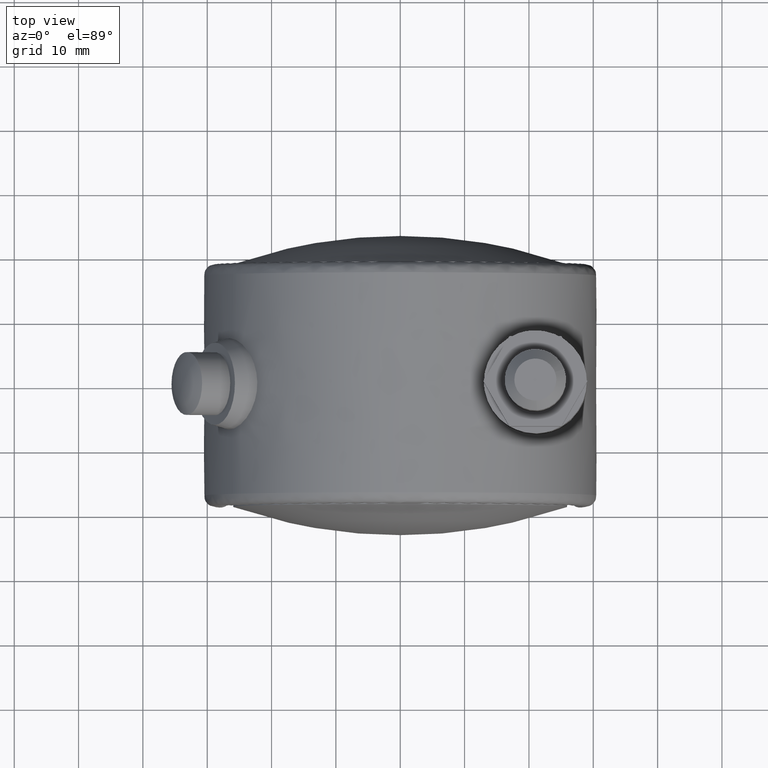
[diagram: clean part render]
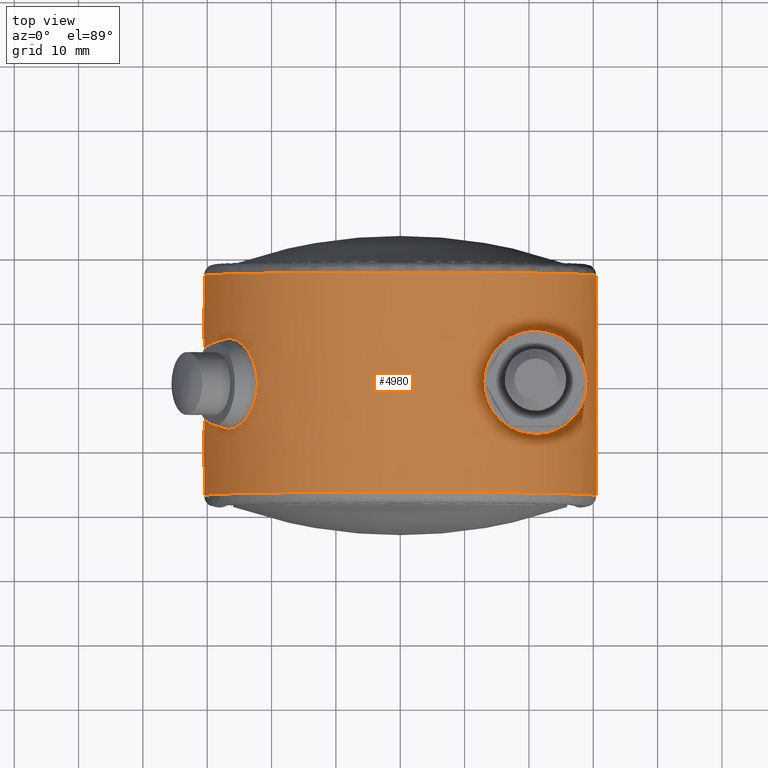
[diagram: same view with one face highlighted and labeled with its STEP entity id]
A machine part, top view. The second image highlights one B-rep face of the part: STEP entity #4980.
In plain terms, the highlighted face is a freeform B-spline surface patch.
Its self-contained STEP definition (entity closure, byte-faithful):
#1955=CARTESIAN_POINT('',(-27.778086036857172,6.638301039503485,12.594755659644420));
#1956=VERTEX_POINT('',#1955);
#1957=CARTESIAN_POINT('',(-29.260213249171208,-2.662628507578598,8.607549488085503));
#1958=VERTEX_POINT('',#1957);
#1959=CARTESIAN_POINT('',(-27.778086036857172,6.638301039503485,12.594755659644420));
#1960=CARTESIAN_POINT('',(-27.804671612689621,6.614725664539500,12.536119196431780));
#1961=CARTESIAN_POINT('',(-27.830949285658718,6.590272796179548,12.477668427208370));
#1962=CARTESIAN_POINT('',(-27.946463707063732,6.477640031470103,12.218567737081351));
#1963=CARTESIAN_POINT('',(-28.032397642587160,6.379868394860700,12.019976601217611));
#1964=CARTESIAN_POINT('',(-28.156130439130859,6.216993306614456,11.725762980640420));
#1965=CARTESIAN_POINT('',(-28.196545483983019,6.159920286204829,11.628216814908381));
#1966=CARTESIAN_POINT('',(-28.274855208216579,6.041552748386622,11.436484040289621));
#1967=CARTESIAN_POINT('',(-28.312861073263381,5.980121819535320,11.342036695741429));
#1968=CARTESIAN_POINT('',(-28.497431226189288,5.661877700440829,10.876882593172260));
#1969=CARTESIAN_POINT('',(-28.627739327794298,5.372131747847775,10.527192706201349));
#1970=CARTESIAN_POINT('',(-28.772186020022321,4.964967903483309,10.120210519056270));
#1971=CARTESIAN_POINT('',(-28.800146145333489,4.881264794397393,10.040335377569850));
#1972=CARTESIAN_POINT('',(-28.854260927942398,4.709202097783509,9.883743237542454));
#1973=CARTESIAN_POINT('',(-28.880444322481509,4.620708357542058,9.806935375787985));
#1974=CARTESIAN_POINT('',(-28.955537475158891,4.351107118937831,9.583911383043272));
#1975=CARTESIAN_POINT('',(-29.001297526197899,4.165009024349370,9.444229167688997));
#1976=CARTESIAN_POINT('',(-29.126991686127131,3.587828246727534,9.052268298213631));
#1977=CARTESIAN_POINT('',(-29.195469818281790,3.178063052160873,8.826784431668514));
#1978=CARTESIAN_POINT('',(-29.264204993728800,2.632382450709184,8.594101089420418));
#1979=CARTESIAN_POINT('',(-29.277114605879071,2.521349637012921,8.549988433793944));
#1980=CARTESIAN_POINT('',(-29.300969606359079,2.298515783990096,8.467876024255936));
#1981=CARTESIAN_POINT('',(-29.311956114592700,2.186419557629584,8.429738431840116));
#1982=CARTESIAN_POINT('',(-29.342223475125749,1.848115179982575,8.324014515830507));
#1983=CARTESIAN_POINT('',(-29.358823040893299,1.619896050816570,8.265098002886177));
#1984=CARTESIAN_POINT('',(-29.385286853851699,1.158093229482943,8.170511415273131));
#1985=CARTESIAN_POINT('',(-29.395151137920251,0.924509797976568,8.134840128619162));
#1986=CARTESIAN_POINT('',(-29.404949462026291,0.569996129638390,8.099322979824271));
#1987=CARTESIAN_POINT('',(-29.407379828554269,0.451133926584753,8.090487206787060));
#1988=CARTESIAN_POINT('',(-29.409752432082801,0.271777756721625,8.081856759744014));
#1989=CARTESIAN_POINT('',(-29.410330464482591,0.211776828489280,8.079752617889898));
#1990=CARTESIAN_POINT('',(-29.411054545149380,0.092170938519100,8.077116576350640));
#1991=CARTESIAN_POINT('',(-29.411202132817149,0.032475388800932,8.076579075393687));
#1992=CARTESIAN_POINT('',(-29.410623284796760,-0.503828914133659,8.078687254096831));
#1993=CARTESIAN_POINT('',(-29.396788363519711,-0.973811158633142,8.129527249369904));
#1994=CARTESIAN_POINT('',(-29.362352594725991,-1.553090493977871,8.252445596819982));
#1995=CARTESIAN_POINT('',(-29.354594147854058,-1.668532769994983,8.280022416417623));
#1996=CARTESIAN_POINT('',(-29.337264465461111,-1.898580771638011,8.341216020358816));
#1997=CARTESIAN_POINT('',(-29.327661101081649,-2.013505330492232,8.374944210979056));
#1998=CARTESIAN_POINT('',(-29.300421992210779,-2.309074947478676,8.469884395450313));
#1999=CARTESIAN_POINT('',(-29.281444912079252,-2.487615227862285,8.535377687118720));
#2000=CARTESIAN_POINT('',(-29.260213249171208,-2.662628507578598,8.607549488085503));
#2001=B_SPLINE_CURVE_WITH_KNOTS('',3,(#1959,#1960,#1961,#1962,#1963,#1964,#1965,#1966,#1967,#1968,#1969,#1970,#1971,#1972,#1973,#1974,#1975,#1976,#1977,#1978,#1979,#1980,#1981,#1982,#1983,#1984,#1985,#1986,#1987,#1988,#1989,#1990,#1991,#1992,#1993,#1994,#1995,#1996,#1997,#1998,#1999,#2000),.UNSPECIFIED.,.F.,.U.,(4,2,2,2,2,2,2,2,2,2,2,2,2,2,2,2,2,2,2,2,4),(0.682967139668406,0.687499999999992,0.703124999999993,0.710937499999993,0.718749999999993,0.749999999999994,0.757812499999994,0.765624999999994,0.781249999999994,0.812499999999995,0.820312499999995,0.828124999999996,0.843749999999996,0.859374999999996,0.867187499999996,0.871093749999997,0.874999999999997,0.906249999999997,0.914062499999998,0.921874999999998,0.934430154299400),.UNSPECIFIED.);
#2002=EDGE_CURVE('',#1956,#1958,#2001,.T.);
#2071=CARTESIAN_POINT('',(-28.727618650315950,-5.090132312476927,10.245678439323511));
#2072=VERTEX_POINT('',#2071);
#2073=CARTESIAN_POINT('',(-29.260213249171208,-2.662628507578598,8.607549488085503));
#2074=CARTESIAN_POINT('',(-29.255021925727430,-2.705420828872721,8.625196120645986));
#2075=CARTESIAN_POINT('',(-29.249695813164049,-2.748002289689817,8.643242024832455));
#2076=CARTESIAN_POINT('',(-29.216433748269690,-3.006043675863709,8.755544133261234));
#2077=CARTESIAN_POINT('',(-29.185115625550662,-3.216297650718590,8.859641503069502));
#2078=CARTESIAN_POINT('',(-29.114877427021639,-3.626136380812874,9.087801688076214));
#2079=CARTESIAN_POINT('',(-29.075919188251479,-3.825898692679417,9.211987173088623));
#2080=CARTESIAN_POINT('',(-28.989679272806239,-4.213861977009954,9.479888466292458));
#2081=CARTESIAN_POINT('',(-28.942885974396422,-4.399897267020100,9.622080355198989));
#2082=CARTESIAN_POINT('',(-28.841387846392120,-4.756566460076388,9.922168665544028));
#2083=CARTESIAN_POINT('',(-28.786656923363282,-4.927273876875549,10.080142289116649));
#2084=CARTESIAN_POINT('',(-28.727618650315950,-5.090132312476927,10.245678439323511));
#2085=B_SPLINE_CURVE_WITH_KNOTS('',3,(#2073,#2074,#2075,#2076,#2077,#2078,#2079,#2080,#2081,#2082,#2083,#2084),.UNSPECIFIED.,.F.,.U.,(4,2,2,2,2,4),(0.934430154299400,0.937499999999998,0.953124999999999,0.968749999999999,0.984375000000000,1.0),.UNSPECIFIED.);
#2086=EDGE_CURVE('',#1958,#2072,#2085,.T.);
#2088=CARTESIAN_POINT('',(-23.707433004148481,5.081656210524199,19.188736809748882));
#2089=VERTEX_POINT('',#2088);
#2090=CARTESIAN_POINT('',(-28.727618650315950,-5.090132312476927,10.245678439323511));
#2091=CARTESIAN_POINT('',(-28.609541979102818,-5.415849118113027,10.576750861925680));
#2092=CARTESIAN_POINT('',(-28.477539035479040,-5.701626143077689,10.928802432264931));
#2093=CARTESIAN_POINT('',(-28.182140700455921,-6.199300652593468,11.669442902744651));
#2094=CARTESIAN_POINT('',(-28.018774695685519,-6.411170463734176,12.058062067842631));
#2095=CARTESIAN_POINT('',(-27.791117883300991,-6.627818150180186,12.566470429835841));
#2096=CARTESIAN_POINT('',(-27.744501746026192,-6.668601724138171,12.669071596532220));
#2097=CARTESIAN_POINT('',(-27.649928212298541,-6.744383145763767,12.874168792898690));
#2098=CARTESIAN_POINT('',(-27.601850012223689,-6.779499059906207,12.976936006367691));
#2099=CARTESIAN_POINT('',(-27.455204910784499,-6.876657200375508,13.285845556435490));
#2100=CARTESIAN_POINT('',(-27.253253492763530,-6.984400079140296,13.699339411962450));
#2101=CARTESIAN_POINT('',(-27.037981584746650,-7.049025479704179,14.115719192395799));
#2102=CARTESIAN_POINT('',(-26.871304216598290,-7.081048919784334,14.429033364121979));
#2103=CARTESIAN_POINT('',(-26.814873951535809,-7.088977708109837,14.533643745726639));
#2104=CARTESIAN_POINT('',(-26.700225276179470,-7.099237349539032,14.743209818954600));
#2105=CARTESIAN_POINT('',(-26.642078177913799,-7.101543254251591,14.848025668265279));
#2106=CARTESIAN_POINT('',(-26.350035054204412,-7.098987240902887,15.367263477234820));
#2107=CARTESIAN_POINT('',(-26.109772871044900,-7.052527577641341,15.771671034852700));
#2108=CARTESIAN_POINT('',(-25.740406882723221,-6.917668807601497,16.362622502647490));
#2109=CARTESIAN_POINT('',(-25.615792803947969,-6.861779126428165,16.556986576212651));
#2110=CARTESIAN_POINT('',(-25.426796171684138,-6.761016128204403,16.844619253890819));
#2111=CARTESIAN_POINT('',(-25.363527082402491,-6.724624946629210,16.939722085763432));
#2112=CARTESIAN_POINT('',(-25.237703126640199,-6.646977330456848,17.126617625621300));
#2113=CARTESIAN_POINT('',(-25.174982574562801,-6.605635556849321,17.218663793262891));
#2114=CARTESIAN_POINT('',(-24.862454237267681,-6.386518173340390,17.672081274687979));
#2115=CARTESIAN_POINT('',(-24.615779918395791,-6.171881429989925,18.013170960783409));
#2116=CARTESIAN_POINT('',(-24.314336006468320,-5.853621780730840,18.413938304458121));
#2117=CARTESIAN_POINT('',(-24.254398129792680,-5.787448625721349,18.492802217187851));
#2118=CARTESIAN_POINT('',(-24.135318862472971,-5.649943448911890,18.647947498029779));
#2119=CARTESIAN_POINT('',(-24.076253487862079,-5.578679253361780,18.724125364490799));
#2120=CARTESIAN_POINT('',(-23.902283064092838,-5.359430160397152,18.946405332722460));
#2121=CARTESIAN_POINT('',(-23.789965145251401,-5.205289289321541,19.087093502298931));
#2122=CARTESIAN_POINT('',(-23.464811951867979,-4.719233700812914,19.487712025134929));
#2123=CARTESIAN_POINT('',(-23.263622055440472,-4.363945194669853,19.726410503749040));
#2124=CARTESIAN_POINT('',(-23.036327086124171,-3.878026459236896,19.989559044346180));
#2125=CARTESIAN_POINT('',(-22.992101452600039,-3.778717186934957,20.040394741142169));
#2126=CARTESIAN_POINT('',(-22.907234134916159,-3.578164626047099,20.137347761698500));
#2127=CARTESIAN_POINT('',(-22.866455245842278,-3.476637263093053,20.183624563421109));
#2128=CARTESIAN_POINT('',(-22.749151846771309,-3.168331012890927,20.316003405234909));
#2129=CARTESIAN_POINT('',(-22.677650328682549,-2.957837052266009,20.395671426242409));
#2130=CARTESIAN_POINT('',(-22.548660126491249,-2.526868598710318,20.538187939962469));
#2131=CARTESIAN_POINT('',(-22.491169769320759,-2.306394881602160,20.601037216140480));
#2132=CARTESIAN_POINT('',(-22.416162880603530,-1.967922930741293,20.682528972627019));
#2133=CARTESIAN_POINT('',(-22.393034896155719,-1.853802973853286,20.707558007761559));
#2134=CARTESIAN_POINT('',(-22.361273598941089,-1.680620668949122,20.741834192269881));
#2135=CARTESIAN_POINT('',(-22.351161384976329,-1.622470139347349,20.752729507973690));
#2136=CARTESIAN_POINT('',(-22.332037708200058,-1.506123508987018,20.773307129292402));
#2137=CARTESIAN_POINT('',(-22.323017886435618,-1.447892011377752,20.782998513102282));
#2138=CARTESIAN_POINT('',(-22.246693803371759,-0.923289600884365,20.864911192194231));
#2139=CARTESIAN_POINT('',(-22.213140462590129,-0.453320024077884,20.900392170646072));
#2140=CARTESIAN_POINT('',(-22.214380972054599,0.138675700099288,20.899073619649190));
#2141=CARTESIAN_POINT('',(-22.216801670490991,0.257303517921745,20.896501360841071));
#2142=CARTESIAN_POINT('',(-22.226051510154669,0.495023674178581,20.886662726666380));
#2143=CARTESIAN_POINT('',(-22.232897162800882,0.614327060046417,20.879378797278370));
#2144=CARTESIAN_POINT('',(-22.260069061195370,0.971553332364410,20.850420289252661));
#2145=CARTESIAN_POINT('',(-22.286785037031660,1.206196619125360,20.821907377232328));
#2146=CARTESIAN_POINT('',(-22.391310700114602,1.900057972772456,20.709651411420118));
#2147=CARTESIAN_POINT('',(-22.493333645858929,2.349300520623549,20.599493700442942));
#2148=CARTESIAN_POINT('',(-22.659291494016369,2.894207393833784,20.415899660322459));
#2149=CARTESIAN_POINT('',(-22.694325776840781,3.002010433290721,20.376961999248358));
#2150=CARTESIAN_POINT('',(-22.767399354472211,3.213673283436270,20.295283427884691));
#2151=CARTESIAN_POINT('',(-22.805513832153739,3.317783703780207,20.252459476387951));
#2152=CARTESIAN_POINT('',(-22.924373865278039,3.625075106731448,20.118086063294449));
#2153=CARTESIAN_POINT('',(-23.009625929529030,3.823228846674195,20.020650865884480));
#2154=CARTESIAN_POINT('',(-23.191268825266128,4.206454992621785,19.809957011178380));
#2155=CARTESIAN_POINT('',(-23.287660933908771,4.391527077567507,19.696698833789760));
#2156=CARTESIAN_POINT('',(-23.440173773765551,4.659271360838094,19.514469699074649));
#2157=CARTESIAN_POINT('',(-23.492469894774921,4.747079893395590,19.451499658511491));
#2158=CARTESIAN_POINT('',(-23.598686136329292,4.917824505706097,19.322499666476858));
#2159=CARTESIAN_POINT('',(-23.652658514584068,5.000873830973760,19.256409974197350));
#2160=CARTESIAN_POINT('',(-23.707433004148481,5.081656210524199,19.188736809748882));
#2161=B_SPLINE_CURVE_WITH_KNOTS('',3,(#2090,#2091,#2092,#2093,#2094,#2095,#2096,#2097,#2098,#2099,#2100,#2101,#2102,#2103,#2104,#2105,#2106,#2107,#2108,#2109,#2110,#2111,#2112,#2113,#2114,#2115,#2116,#2117,#2118,#2119,#2120,#2121,#2122,#2123,#2124,#2125,#2126,#2127,#2128,#2129,#2130,#2131,#2132,#2133,#2134,#2135,#2136,#2137,#2138,#2139,#2140,#2141,#2142,#2143,#2144,#2145,#2146,#2147,#2148,#2149,#2150,#2151,#2152,#2153,#2154,#2155,#2156,#2157,#2158,#2159,#2160),.UNSPECIFIED.,.F.,.U.,(4,2,2,2,2,1,2,2,2,2,2,2,2,2,2,2,2,2,2,2,2,2,2,2,2,2,2,2,2,2,2,2,2,2,2,4),(0.0,0.031249999999999,0.062499999999999,0.070312499999998,0.078124999999998,0.093749999999998,0.109374999999997,0.117187499999997,0.124999999999997,0.156249999999996,0.171874999999995,0.179687499999995,0.187499999999995,0.218749999999996,0.226562499999996,0.234374999999996,0.249999999999995,0.281249999999995,0.289062499999995,0.296874999999995,0.312499999999994,0.328124999999994,0.335937499999994,0.339843749999994,0.343749999999994,0.374999999999993,0.382812499999993,0.390624999999993,0.406249999999993,0.437499999999993,0.445312499999992,0.453124999999992,0.468749999999992,0.484374999999992,0.492187499999992,0.499999999999992),.UNSPECIFIED.);
#2162=EDGE_CURVE('',#2072,#2089,#2161,.T.);
#2164=CARTESIAN_POINT('',(-23.707433004148481,5.081656210524199,19.188736809748882));
#2165=CARTESIAN_POINT('',(-23.926530802302739,5.404785282777436,18.918044258664018));
#2166=CARTESIAN_POINT('',(-24.158322495424180,5.691984068412255,18.622239268012109));
#2167=CARTESIAN_POINT('',(-24.460514620934639,6.006969776766852,18.219312768739869));
#2168=CARTESIAN_POINT('',(-24.521583978940789,6.067745223617624,18.137054914775138));
#2169=CARTESIAN_POINT('',(-24.644930616613149,6.184790017276715,17.969091077598751));
#2170=CARTESIAN_POINT('',(-24.707216006021110,6.241046995825059,17.883367130989559));
#2171=CARTESIAN_POINT('',(-24.893801663242471,6.401292464581256,17.623678997620321));
#2172=CARTESIAN_POINT('',(-25.018485725356459,6.497420496327009,17.446314759153228));
#2173=CARTESIAN_POINT('',(-25.392668978203790,6.754601588001283,16.901376764778501));
#2174=CARTESIAN_POINT('',(-25.642259038728099,6.884749198533679,16.521054072352360));
#2175=CARTESIAN_POINT('',(-25.952682283691921,6.994228632835851,16.022547438056389));
#2176=CARTESIAN_POINT('',(-26.014722677474349,7.013430379337764,15.921623823105760));
#2177=CARTESIAN_POINT('',(-26.137268870045911,7.046036302971080,15.719639732490240));
#2178=CARTESIAN_POINT('',(-26.197946190199641,7.059506826245158,15.618306705910809));
#2179=CARTESIAN_POINT('',(-26.378191919172231,7.091560710307816,15.313285611351059));
#2180=CARTESIAN_POINT('',(-26.613756718740639,7.112050158077584,14.903865781012410));
#2181=CARTESIAN_POINT('',(-26.839796974850412,7.088570671088309,14.488997698631350));
#2182=CARTESIAN_POINT('',(-27.005750518112340,7.054209568382655,14.175800175177759));
#2183=CARTESIAN_POINT('',(-27.060472200739330,7.039959134117916,14.071059880940430));
#2184=CARTESIAN_POINT('',(-27.168721727728869,7.005759939242805,13.860895970972839));
#2185=CARTESIAN_POINT('',(-27.222306269489621,6.985768773334444,13.755350341656490));
#2186=CARTESIAN_POINT('',(-27.453993587274429,6.885729116008688,13.292425045496460));
#2187=CARTESIAN_POINT('',(-27.621388151058959,6.777257329949556,12.940364808344119));
#2188=CARTESIAN_POINT('',(-27.778086036857172,6.638301039503485,12.594755659644420));
#2189=B_SPLINE_CURVE_WITH_KNOTS('',3,(#2164,#2165,#2166,#2167,#2168,#2169,#2170,#2171,#2172,#2173,#2174,#2175,#2176,#2177,#2178,#2179,#2180,#2181,#2182,#2183,#2184,#2185,#2186,#2187,#2188),.UNSPECIFIED.,.F.,.U.,(4,2,2,2,2,2,2,2,1,2,2,2,4),(0.499999999999992,0.531249999999991,0.539062499999991,0.546874999999991,0.562499999999991,0.593749999999991,0.601562499999991,0.609374999999991,0.624999999999991,0.640624999999992,0.648437499999992,0.656249999999992,0.682967139668406),.UNSPECIFIED.);
#2190=EDGE_CURVE('',#2089,#1956,#2189,.T.);
#2661=CARTESIAN_POINT('',(20.372331091017440,7.975339012096953,22.698406674391141));
#2662=VERTEX_POINT('',#2661);
#2668=CARTESIAN_POINT('',(13.0,8.334804E-015,27.590759322642789));
#2669=VERTEX_POINT('',#2668);
#2670=CARTESIAN_POINT('',(13.0,8.334804E-015,27.590759322642789));
#2671=CARTESIAN_POINT('',(12.999999903939230,0.340244069778038,27.590759214886159));
#2672=CARTESIAN_POINT('',(13.021613130267690,0.676373878575311,27.580604720681482));
#2673=CARTESIAN_POINT('',(13.106046846197200,1.340763060584762,27.540582460555850));
#2674=CARTESIAN_POINT('',(13.168876286163460,1.669020783921562,27.510711212949960));
#2675=CARTESIAN_POINT('',(13.273164768506390,2.074375837903506,27.460400095731870));
#2676=CARTESIAN_POINT('',(13.295314677020180,2.155197481042243,27.449685327594121));
#2677=CARTESIAN_POINT('',(13.342217234844121,2.316336776828554,27.426918360103141));
#2678=CARTESIAN_POINT('',(13.367014306899870,2.396788747766879,27.414844434121900));
#2679=CARTESIAN_POINT('',(13.445023177025060,2.636391136988828,27.376716808652510));
#2680=CARTESIAN_POINT('',(13.501644294498149,2.793229025394524,27.348860319426421));
#2681=CARTESIAN_POINT('',(13.684767138640851,3.255333365444949,27.257946063388381));
#2682=CARTESIAN_POINT('',(13.824484610625770,3.552221234186172,27.187579581438939));
#2683=CARTESIAN_POINT('',(14.059101111619221,3.981270158257659,27.066571385249290));
#2684=CARTESIAN_POINT('',(14.141491652824021,4.121564563550847,27.023649702537149));
#2685=CARTESIAN_POINT('',(14.271273464828409,4.327916714682016,26.955203535004660));
#2686=CARTESIAN_POINT('',(14.315567345288720,4.396018743163721,26.931710300936441));
#2687=CARTESIAN_POINT('',(14.406215190116660,4.530852360058871,26.883330256415238));
#2688=CARTESIAN_POINT('',(14.452649035865180,4.597691163602041,26.858399973029279));
#2689=CARTESIAN_POINT('',(14.688474013098650,4.926398981943642,26.730965939618290));
#2690=CARTESIAN_POINT('',(14.889363701797519,5.172848901545065,26.619842755012780));
#2691=CARTESIAN_POINT('',(15.312757919317290,5.635026194950785,26.378563240018181));
#2692=CARTESIAN_POINT('',(15.535274891524439,5.850740023191091,26.248403565346450));
#2693=CARTESIAN_POINT('',(15.825726289884260,6.101869714363398,26.072988843207721));
#2694=CARTESIAN_POINT('',(15.884433551392981,6.151167629137829,26.037268726167589));
#2695=CARTESIAN_POINT('',(16.003057971239340,6.247915939276683,25.964528128495449));
#2696=CARTESIAN_POINT('',(16.063054072131312,6.295424382941055,25.927457923881509));
#2697=CARTESIAN_POINT('',(16.243826795406122,6.434434998165723,25.814879028780830));
#2698=CARTESIAN_POINT('',(16.365606511742090,6.522619909597924,25.737870749454778));
#2699=CARTESIAN_POINT('',(16.734312364135739,6.774402397090364,25.500938499854321));
#2700=CARTESIAN_POINT('',(16.984591311296199,6.925260343770498,25.335114360710669));
#2701=CARTESIAN_POINT('',(17.492242945045032,7.195719294626310,24.987312243208489));
#2702=CARTESIAN_POINT('',(17.749621079952082,7.315309488988477,24.805333115208889));
#2703=CARTESIAN_POINT('',(18.074865759497339,7.446376717284926,24.567363793782160));
#2704=CARTESIAN_POINT('',(18.140050211113280,7.471647689499037,24.519273659390720));
#2705=CARTESIAN_POINT('',(18.270076706398651,7.520129653183866,24.422540685545659));
#2706=CARTESIAN_POINT('',(18.464850199308511,7.589862657814537,24.276431870292779));
#2707=CARTESIAN_POINT('',(18.658771651709710,7.650924391559264,24.127300119008599));
#2708=CARTESIAN_POINT('',(19.045351756637189,7.762169899469661,23.825012147204671));
#2709=CARTESIAN_POINT('',(19.301384721247651,7.821856372593065,23.618123012221648));
#2710=CARTESIAN_POINT('',(19.809503454035070,7.915140207249634,23.193592608433011));
#2711=CARTESIAN_POINT('',(20.061590638462210,7.948729064922150,22.975951071833350));
#2712=CARTESIAN_POINT('',(20.331768616081028,7.972068859912444,22.734763399670531));
#2713=CARTESIAN_POINT('',(20.352057207199010,7.973743404161616,22.716602958450260));
#2714=CARTESIAN_POINT('',(20.372331091017440,7.975339012096953,22.698406674391141));
#2715=B_SPLINE_CURVE_WITH_KNOTS('',3,(#2670,#2671,#2672,#2673,#2674,#2675,#2676,#2677,#2678,#2679,#2680,#2681,#2682,#2683,#2684,#2685,#2686,#2687,#2688,#2689,#2690,#2691,#2692,#2693,#2694,#2695,#2696,#2697,#2698,#2699,#2700,#2701,#2702,#2703,#2704,#2705,#2706,#2707,#2708,#2709,#2710,#2711,#2712,#2713,#2714),.UNSPECIFIED.,.F.,.U.,(4,2,2,2,2,2,2,2,2,2,2,2,2,2,2,2,2,2,1,2,2,2,4),(0.0,0.015624999999999,0.031249999999997,0.035156249999997,0.039062499999997,0.046874999999996,0.062499999999995,0.070312499999994,0.074218749999994,0.078124999999994,0.093749999999992,0.109374999999991,0.113281249999991,0.117187499999991,0.124999999999990,0.140624999999990,0.156249999999989,0.160156249999989,0.164062499999989,0.171874999999988,0.187499999999988,0.203124999999988,0.204394584708128),.UNSPECIFIED.);
#2716=EDGE_CURVE('',#2669,#2662,#2715,.T.);
#2718=CARTESIAN_POINT('',(21.170517570596040,-7.998188154073477,21.955847994155739));
#2719=VERTEX_POINT('',#2718);
#2720=CARTESIAN_POINT('',(21.170517570596040,-7.998188154073477,21.955847994155739));
#2721=CARTESIAN_POINT('',(21.121311347838532,-7.999230619422698,22.003293098054531));
#2722=CARTESIAN_POINT('',(21.071890485968009,-7.999825397621969,22.050626297141051));
#2723=CARTESIAN_POINT('',(20.900213738951550,-8.000303025761026,22.213946823188252));
#2724=CARTESIAN_POINT('',(20.776835337812990,-7.997839846449859,22.329383565034640));
#2725=CARTESIAN_POINT('',(20.529426370336310,-7.987102552279535,22.557058986329800));
#2726=CARTESIAN_POINT('',(20.405153823803520,-7.978833222235091,22.669530598407750));
#2727=CARTESIAN_POINT('',(20.030714556765879,-7.945012699149613,23.002873053015641));
#2728=CARTESIAN_POINT('',(19.778923800534930,-7.910469559737523,23.219673476918231));
#2729=CARTESIAN_POINT('',(19.271501190388449,-7.815296064825385,23.642510553300330));
#2730=CARTESIAN_POINT('',(19.015867897879101,-7.754674193053666,23.848547479052101));
#2731=CARTESIAN_POINT('',(18.629972004576590,-7.642045307539031,24.149549742693580));
#2732=CARTESIAN_POINT('',(18.500933242164749,-7.600879665172768,24.248541104703580));
#2733=CARTESIAN_POINT('',(18.306829328396290,-7.533356599391053,24.395011101920979));
#2734=CARTESIAN_POINT('',(18.242037141341939,-7.509885903410658,24.443498219872190));
#2735=CARTESIAN_POINT('',(18.112282807351480,-7.460954113257366,24.539799018599531));
#2736=CARTESIAN_POINT('',(18.047242935202330,-7.435459679235541,24.587668758606942));
#2737=CARTESIAN_POINT('',(17.723262859794680,-7.303509883763169,24.824160027304220));
#2738=CARTESIAN_POINT('',(17.467121601672599,-7.183368445523927,25.004862111616120));
#2739=CARTESIAN_POINT('',(16.962372837284011,-6.912277837669375,25.349977796479859));
#2740=CARTESIAN_POINT('',(16.713760133087600,-6.761338485288486,25.514392408106520));
#2741=CARTESIAN_POINT('',(16.347851763685391,-6.509944362990025,25.749150288689549));
#2742=CARTESIAN_POINT('',(16.227054124126919,-6.421974459486569,25.825423742942551));
#2743=CARTESIAN_POINT('',(16.047824508425499,-6.283440413973612,25.936890259781791));
#2744=CARTESIAN_POINT('',(15.988409417463290,-6.236165194495692,25.973555011973559));
#2745=CARTESIAN_POINT('',(15.870274459818290,-6.139357771952021,26.045905326840199));
#2746=CARTESIAN_POINT('',(15.811453176778929,-6.089734861262074,26.081651584435789));
#2747=CARTESIAN_POINT('',(15.520984882860629,-5.837389468089119,26.256859506504529));
#2748=CARTESIAN_POINT('',(15.299552709478570,-5.621545336077015,26.386207786702212));
#2749=CARTESIAN_POINT('',(14.879973919437640,-5.161604138628589,26.625075602843388));
#2750=CARTESIAN_POINT('',(14.681818532873599,-4.917514624387941,26.734595900525090));
#2751=CARTESIAN_POINT('',(14.403685715318501,-4.529234894958843,26.884845924548060));
#2752=CARTESIAN_POINT('',(14.314165091496051,-4.396109235876355,26.932585486722520));
#2753=CARTESIAN_POINT('',(14.184952706907531,-4.190663697317691,27.000731227406821));
#2754=CARTESIAN_POINT('',(14.142727283852210,-4.121221658312192,27.022868814367339));
#2755=CARTESIAN_POINT('',(14.060022616269389,-3.980373345007281,27.065992279268780));
#2756=CARTESIAN_POINT('',(14.019465248547229,-3.908822163049307,27.087018360683540));
#2757=CARTESIAN_POINT('',(13.822207428428330,-3.547895101893951,27.188749647412060));
#2758=CARTESIAN_POINT('',(13.682785104399491,-3.250604417952824,27.258936971641759));
#2759=CARTESIAN_POINT('',(13.440754295979520,-2.639293469542896,27.379086492287740));
#2760=CARTESIAN_POINT('',(13.338138827264380,-2.325275433210366,27.429047192899791));
#2761=CARTESIAN_POINT('',(13.213019366883310,-1.841381843451622,27.489420934451491));
#2762=CARTESIAN_POINT('',(13.176126146456079,-1.677933201052164,27.507107237311882));
#2763=CARTESIAN_POINT('',(13.128288133968750,-1.429428925937841,27.529953917459931));
#2764=CARTESIAN_POINT('',(13.113592384789310,-1.345999397875844,27.536955398433239));
#2765=CARTESIAN_POINT('',(13.086920515415990,-1.179115251265940,27.549641182861169));
#2766=CARTESIAN_POINT('',(13.074916691885489,-1.095526940131483,27.555338736840952));
#2767=CARTESIAN_POINT('',(13.042888999531780,-0.844325480124772,27.570520574461639));
#2768=CARTESIAN_POINT('',(13.026844946449490,-0.676276297022707,27.578097309250420));
#2769=CARTESIAN_POINT('',(13.010761648644340,-0.423330058123802,27.585686803069770));
#2770=CARTESIAN_POINT('',(13.006731999991370,-0.338869111653421,27.587586546742209));
#2771=CARTESIAN_POINT('',(13.001351180768500,-0.169654631714133,27.590122803183480));
#2772=CARTESIAN_POINT('',(12.999999999501830,-0.085060995974636,27.590759322643461));
#2773=CARTESIAN_POINT('',(13.0,8.334804E-015,27.590759322642789));
#2774=B_SPLINE_CURVE_WITH_KNOTS('',3,(#2720,#2721,#2722,#2723,#2724,#2725,#2726,#2727,#2728,#2729,#2730,#2731,#2732,#2733,#2734,#2735,#2736,#2737,#2738,#2739,#2740,#2741,#2742,#2743,#2744,#2745,#2746,#2747,#2748,#2749,#2750,#2751,#2752,#2753,#2754,#2755,#2756,#2757,#2758,#2759,#2760,#2761,#2762,#2763,#2764,#2765,#2766,#2767,#2768,#2769,#2770,#2771,#2772,#2773),.UNSPECIFIED.,.F.,.U.,(4,2,2,2,2,2,2,2,2,2,2,2,2,2,2,2,2,2,2,2,2,2,2,2,2,2,4),(0.778072405911495,0.781249999999990,0.789062499999991,0.796874999999991,0.812499999999991,0.828124999999992,0.835937499999992,0.839843749999992,0.843749999999992,0.859374999999992,0.874999999999993,0.882812499999993,0.886718749999993,0.890624999999993,0.906249999999994,0.921874999999995,0.929687499999995,0.933593749999996,0.937499999999996,0.953124999999997,0.968749999999998,0.976562499999999,0.980468749999999,0.984374999999999,0.992187500000000,0.996093750000000,1.0),.UNSPECIFIED.);
#2775=EDGE_CURVE('',#2719,#2669,#2774,.T.);
#2823=CARTESIAN_POINT('',(28.999895866510808,-0.040818194267602,9.447541464927753));
#2824=VERTEX_POINT('',#2823);
#2825=CARTESIAN_POINT('',(28.999895866510808,-0.040818194267602,9.447541464927753));
#2826=CARTESIAN_POINT('',(28.999466214408979,-0.125024985761245,9.448860311507323));
#2827=CARTESIAN_POINT('',(28.997705745496152,-0.209561128017436,9.454266917218384));
#2828=CARTESIAN_POINT('',(28.991454197050171,-0.379305719176543,9.473419918093274));
#2829=CARTESIAN_POINT('',(28.987015024879980,-0.463088870802789,9.487006303984074));
#2830=CARTESIAN_POINT('',(28.970064659284969,-0.710992778104979,9.538693229067414));
#2831=CARTESIAN_POINT('',(28.953926323659921,-0.871891599050404,9.587716465261485));
#2832=CARTESIAN_POINT('',(28.923331552824099,-1.107746051056898,9.679459219860833));
#2833=CARTESIAN_POINT('',(28.912041694407382,-1.185534532033239,9.713149823777863));
#2834=CARTESIAN_POINT('',(28.887826855472390,-1.337192275391238,9.784931984983007));
#2835=CARTESIAN_POINT('',(28.874865232686421,-1.411374722773494,9.823133995842207));
#2836=CARTESIAN_POINT('',(28.833657710783850,-1.629642223001002,9.943711528936593));
#2837=CARTESIAN_POINT('',(28.803101660287311,-1.769477290136857,10.032015601056790));
#2838=CARTESIAN_POINT('',(28.736689946539499,-2.040361091664412,10.220697288736231));
#2839=CARTESIAN_POINT('',(28.700828200058151,-2.171396421399778,10.321094023708220));
#2840=CARTESIAN_POINT('',(28.624322384137312,-2.426401598566568,10.531414394042590));
#2841=CARTESIAN_POINT('',(28.584073826983481,-2.549049295761523,10.640248567641891));
#2842=CARTESIAN_POINT('',(28.458199956339769,-2.904922855426706,10.974403051372070));
#2843=CARTESIAN_POINT('',(28.367367485436869,-3.126647320223306,11.207552820653010));
#2844=CARTESIAN_POINT('',(28.173392156563370,-3.549150549939596,11.686605684430020));
#2845=CARTESIAN_POINT('',(28.070221762861291,-3.749794647455663,11.932612459985309));
#2846=CARTESIAN_POINT('',(27.852034721621319,-4.135046907100209,12.433372493193190));
#2847=CARTESIAN_POINT('',(27.737008617205991,-4.319604242075376,12.688165276117680));
#2848=CARTESIAN_POINT('',(27.555592540315391,-4.586475677422900,13.075152555868950));
#2849=CARTESIAN_POINT('',(27.493559783683310,-4.673858919790865,13.205115626275409));
#2850=CARTESIAN_POINT('',(27.367112095094889,-4.844704085381898,13.465217552543610));
#2851=CARTESIAN_POINT('',(27.302654777020820,-4.928237472668623,13.595453176760500));
#2852=CARTESIAN_POINT('',(27.105583144384742,-5.173571513873103,13.986514550004321));
#2853=CARTESIAN_POINT('',(26.969273060727211,-5.330130634835134,14.247684951109150));
#2854=CARTESIAN_POINT('',(26.545398640022800,-5.780889120983929,15.031456428055010));
#2855=CARTESIAN_POINT('',(26.242942875101448,-6.056380979743837,15.554244844894059));
#2856=CARTESIAN_POINT('',(25.596047715978852,-6.560833574937910,16.597256531219760));
#2857=CARTESIAN_POINT('',(25.251620093372001,-6.789724648309830,17.117521711041380));
#2858=CARTESIAN_POINT('',(24.700415176599272,-7.095846833481302,17.895263442960399));
#2859=CARTESIAN_POINT('',(24.510904108248141,-7.191641958206220,18.154080016155419));
#2860=CARTESIAN_POINT('',(24.217414787207261,-7.325280557553059,18.541657912420330));
#2861=CARTESIAN_POINT('',(24.118028007192891,-7.368146676741992,18.670759027235739));
#2862=CARTESIAN_POINT('',(23.917272475388572,-7.449912960469409,18.927244777650500));
#2863=CARTESIAN_POINT('',(23.815763562203479,-7.488879464101702,19.054816771505848));
#2864=CARTESIAN_POINT('',(23.302512003680711,-7.673908433252922,19.689316406671889));
#2865=CARTESIAN_POINT('',(22.873693819556511,-7.790796551579367,20.186160793838830));
#2866=CARTESIAN_POINT('',(22.023188638046641,-7.944828472284153,21.108807958559350));
#2867=CARTESIAN_POINT('',(21.605229193750841,-7.988978886596056,21.536694956322378));
#2868=CARTESIAN_POINT('',(21.170517570596040,-7.998188154073477,21.955847994155739));
#2869=B_SPLINE_CURVE_WITH_KNOTS('',3,(#2825,#2826,#2827,#2828,#2829,#2830,#2831,#2832,#2833,#2834,#2835,#2836,#2837,#2838,#2839,#2840,#2841,#2842,#2843,#2844,#2845,#2846,#2847,#2848,#2849,#2850,#2851,#2852,#2853,#2854,#2855,#2856,#2857,#2858,#2859,#2860,#2861,#2862,#2863,#2864,#2865,#2866,#2867,#2868),.UNSPECIFIED.,.F.,.U.,(4,2,2,2,2,2,2,2,2,2,2,2,2,2,2,2,2,2,2,2,2,4),(0.499999999999988,0.503906249999988,0.507812499999988,0.515624999999988,0.519531249999988,0.523437499999988,0.531249999999988,0.539062499999988,0.546874999999988,0.562499999999988,0.578124999999989,0.593749999999989,0.601562499999989,0.609374999999989,0.624999999999989,0.656249999999989,0.687499999999989,0.703124999999989,0.710937499999989,0.718749999999989,0.749999999999990,0.778072405911495),.UNSPECIFIED.);
#2870=EDGE_CURVE('',#2824,#2719,#2869,.T.);
#2872=CARTESIAN_POINT('',(20.372331091017440,7.975339012096953,22.698406674391141));
#2873=CARTESIAN_POINT('',(20.476814394860860,7.983562123295528,22.604630629446088));
#2874=CARTESIAN_POINT('',(20.580907080667490,7.989688728667493,22.509902617954239));
#2875=CARTESIAN_POINT('',(20.808398575754399,7.998664615754803,22.299965976334441));
#2876=CARTESIAN_POINT('',(20.931859134815561,8.000643388904575,22.184124391489799));
#2877=CARTESIAN_POINT('',(21.543070492582519,7.996509522895173,21.600981826078868));
#2878=CARTESIAN_POINT('',(22.010563826394218,7.948979957824675,21.123989728706562));
#2879=CARTESIAN_POINT('',(22.906418467171250,7.782871204991352,20.149041881917348));
#2880=CARTESIAN_POINT('',(23.334753686592681,7.664155590043879,19.651089642469032));
#2881=CARTESIAN_POINT('',(23.949518855898880,7.439617401009746,18.888536715977541));
#2882=CARTESIAN_POINT('',(24.149807470361129,7.356977698999828,18.631748963825750));
#2883=CARTESIAN_POINT('',(24.443417447757142,7.221804288386003,18.242681655423549));
#2884=CARTESIAN_POINT('',(24.539962741718231,7.174955753647552,18.112588053615060));
#2885=CARTESIAN_POINT('',(24.729808213643199,7.078125214873129,17.852512768600850));
#2886=CARTESIAN_POINT('',(24.823213715242360,7.028095187000134,17.722391950707841));
#2887=CARTESIAN_POINT('',(25.282885525258799,6.770131609125193,17.071376893470109));
#2888=CARTESIAN_POINT('',(25.627173824347420,6.538983262560786,16.549187609240761));
#2889=CARTESIAN_POINT('',(26.273195011555309,6.030128941236733,15.503125762867310));
#2890=CARTESIAN_POINT('',(26.574915101893009,5.752493431060155,14.979209381625500));
#2891=CARTESIAN_POINT('',(26.997332067371850,5.298556812022928,14.194440738368931));
#2892=CARTESIAN_POINT('',(27.133096739533588,5.140943684048899,13.933054765956889));
#2893=CARTESIAN_POINT('',(27.394656612243800,4.811709268906970,13.411478669909600));
#2894=CARTESIAN_POINT('',(27.520528491662599,4.639995789144180,13.151118811368280));
#2895=CARTESIAN_POINT('',(27.761946750676991,4.280529278262414,12.633516691286459));
#2896=CARTESIAN_POINT('',(27.876833384317958,4.093798948823909,12.377691081905130));
#2897=CARTESIAN_POINT('',(28.094863923116971,3.703098085259662,11.874498455323129));
#2898=CARTESIAN_POINT('',(28.198018857548529,3.499190842336803,11.627086494192451));
#2899=CARTESIAN_POINT('',(28.343495568804279,3.176006322280874,11.265569639154140));
#2900=CARTESIAN_POINT('',(28.390390401362041,3.065446992616508,11.146798759158710));
#2901=CARTESIAN_POINT('',(28.480324761223990,2.838939642872145,10.914966737159270));
#2902=CARTESIAN_POINT('',(28.523438293811591,2.722838455020216,10.801721348187980));
#2903=CARTESIAN_POINT('',(28.605720469903041,2.483745245447467,10.581893969502930));
#2904=CARTESIAN_POINT('',(28.644891569266768,2.360761302963278,10.475303362454101));
#2905=CARTESIAN_POINT('',(28.718904750579931,2.106198421008185,10.270652880446541));
#2906=CARTESIAN_POINT('',(28.753751664361118,1.974634738169228,10.172576804782249));
#2907=CARTESIAN_POINT('',(28.802297897142509,1.768927640474581,10.033942519912490));
#2908=CARTESIAN_POINT('',(28.817856910993399,1.698957086924375,9.989152862646066));
#2909=CARTESIAN_POINT('',(28.847608145763150,1.555759908177278,9.902906615054691));
#2910=CARTESIAN_POINT('',(28.861778567918879,1.482596819628976,9.861511324645809));
#2911=CARTESIAN_POINT('',(28.901518192590721,1.260415794472493,9.744690556923846));
#2912=CARTESIAN_POINT('',(28.924514006425149,1.107890082066425,9.676056274873904));
#2913=CARTESIAN_POINT('',(28.952866692780152,0.870772871914611,9.590745333515756));
#2914=CARTESIAN_POINT('',(28.961290072524069,0.790340005134364,9.565260546985297));
#2915=CARTESIAN_POINT('',(28.975870241399470,0.626315699270510,9.521001960369782));
#2916=CARTESIAN_POINT('',(28.981951491652701,0.543459319221662,9.502458468690671));
#2917=CARTESIAN_POINT('',(28.996296208381679,0.294690538853195,9.458633497126327));
#2918=CARTESIAN_POINT('',(29.000755149230400,0.127595414520862,9.444903748324668));
#2919=CARTESIAN_POINT('',(28.999895866510808,-0.040818194267602,9.447541464927753));
#2920=B_SPLINE_CURVE_WITH_KNOTS('',3,(#2872,#2873,#2874,#2875,#2876,#2877,#2878,#2879,#2880,#2881,#2882,#2883,#2884,#2885,#2886,#2887,#2888,#2889,#2890,#2891,#2892,#2893,#2894,#2895,#2896,#2897,#2898,#2899,#2900,#2901,#2902,#2903,#2904,#2905,#2906,#2907,#2908,#2909,#2910,#2911,#2912,#2913,#2914,#2915,#2916,#2917,#2918,#2919),.UNSPECIFIED.,.F.,.U.,(4,2,2,2,2,2,2,2,2,2,2,2,2,2,2,2,2,2,2,2,2,2,2,4),(0.204394584708128,0.210937499999988,0.218749999999987,0.249999999999988,0.281249999999988,0.296874999999988,0.304687499999988,0.312499999999987,0.343749999999987,0.374999999999988,0.390624999999988,0.406249999999988,0.421874999999988,0.437499999999988,0.445312499999988,0.453124999999988,0.460937499999988,0.468749999999988,0.472656249999988,0.476562499999988,0.484374999999988,0.488281249999988,0.492187499999988,0.499999999999988),.UNSPECIFIED.);
#2921=EDGE_CURVE('',#2662,#2824,#2920,.T.);
#4550=CARTESIAN_POINT('',(29.647461056049000,-17.100000000000001,-7.160869565217389));
#4551=VERTEX_POINT('',#4550);
#4619=CARTESIAN_POINT('',(29.647461056049000,17.100000000000001,-7.160869565217389));
#4620=VERTEX_POINT('',#4619);
#4686=CARTESIAN_POINT('',(-29.647461056049000,-17.100000000000001,-7.160869565217389));
#4687=VERTEX_POINT('',#4686);
#4757=CARTESIAN_POINT('',(-29.647461056049000,17.100000000000001,-7.160869565217389));
#4758=VERTEX_POINT('',#4757);
#4825=CARTESIAN_POINT('',(-29.647461056049011,-17.100000000000001,-7.160869565217417));
#4826=CARTESIAN_POINT('',(-34.573825898210522,-17.099999999999998,13.235286023945019));
#4827=CARTESIAN_POINT('',(-17.286912949105261,-17.100000000000001,25.127925515053111));
#4828=CARTESIAN_POINT('',(1.040834E-014,-17.099999999999998,37.020565006161192));
#4829=CARTESIAN_POINT('',(17.286912949105272,-17.100000000000001,25.127925515053100));
#4830=CARTESIAN_POINT('',(34.573825898210515,-17.099999999999998,13.235286023945019));
#4831=CARTESIAN_POINT('',(29.647461056049021,-17.100000000000001,-7.160869565217403));
#4839=(BOUNDED_CURVE()B_SPLINE_CURVE(2,(#4825,#4826,#4827,#4828,#4829,#4830,#4831),.UNSPECIFIED.,.F.,.U.)B_SPLINE_CURVE_WITH_KNOTS((3,2,2,3),(0.0,0.333333333333333,0.666666666666667,1.0),.UNSPECIFIED.)CURVE()GEOMETRIC_REPRESENTATION_ITEM()RATIONAL_B_SPLINE_CURVE((1.0,0.823866410329610,1.0,0.823866410329610,1.0,0.823866410329610,1.0))REPRESENTATION_ITEM(''));
#4840=EDGE_CURVE('',#4687,#4551,#4839,.T.);
#4915=CARTESIAN_POINT('',(29.647461056049011,17.100000000000001,-7.160869565217417));
#4916=CARTESIAN_POINT('',(34.573825898210522,17.099999999999998,13.235286023945019));
#4917=CARTESIAN_POINT('',(17.286912949105261,17.100000000000001,25.127925515053111));
#4918=CARTESIAN_POINT('',(-1.040834E-014,17.099999999999998,37.020565006161192));
#4919=CARTESIAN_POINT('',(-17.286912949105272,17.100000000000001,25.127925515053100));
#4920=CARTESIAN_POINT('',(-34.573825898210515,17.099999999999998,13.235286023945019));
#4921=CARTESIAN_POINT('',(-29.647461056049021,17.100000000000001,-7.160869565217403));
#4929=(BOUNDED_CURVE()B_SPLINE_CURVE(2,(#4915,#4916,#4917,#4918,#4919,#4920,#4921),.UNSPECIFIED.,.F.,.U.)B_SPLINE_CURVE_WITH_KNOTS((3,2,2,3),(0.0,0.333333333333333,0.666666666666667,1.0),.UNSPECIFIED.)CURVE()GEOMETRIC_REPRESENTATION_ITEM()RATIONAL_B_SPLINE_CURVE((1.0,0.823866410329610,1.0,0.823866410329610,1.0,0.823866410329610,1.0))REPRESENTATION_ITEM(''));
#4930=EDGE_CURVE('',#4620,#4758,#4929,.T.);
#4936=CARTESIAN_POINT('',(-29.583842589116809,17.955000000000009,-7.419316522588724));
#4937=CARTESIAN_POINT('',(-29.583842589116809,-17.976375000000012,-7.419316522588724));
#4938=CARTESIAN_POINT('',(-39.340739115570173,17.955000000000013,31.485411442324118));
#4939=CARTESIAN_POINT('',(-39.340739115570173,-17.976375000000001,31.485411442324118));
#4940=CARTESIAN_POINT('',(0.756458708509946,17.955000000000009,30.490617740910380));
#4941=CARTESIAN_POINT('',(0.756458708509946,-17.976375000000012,30.490617740910380));
#4942=CARTESIAN_POINT('',(40.853656532590072,17.955000000000013,29.495824039496654));
#4943=CARTESIAN_POINT('',(40.853656532590072,-17.976375000000001,29.495824039496654));
#4944=CARTESIAN_POINT('',(29.179532995451900,17.955000000000009,-8.877209818818820));
#4945=CARTESIAN_POINT('',(29.179532995451900,-17.976375000000012,-8.877209818818820));
#4953=(BOUNDED_SURFACE()B_SPLINE_SURFACE(1,2,((#4936,#4938,#4940,#4942,#4944),(#4937,#4939,#4941,#4943,#4945)),.UNSPECIFIED.,.F.,.F.,.U.)B_SPLINE_SURFACE_WITH_KNOTS((2,2),(3,2,3),(0.0,35.931375000000017),(0.0,60.494990346048020,120.989980692096000),.UNSPECIFIED.)GEOMETRIC_REPRESENTATION_ITEM()RATIONAL_B_SPLINE_SURFACE(((1.0,0.605293988042895,1.0,0.605293988042895,1.0),(1.0,0.605293988042895,1.0,0.605293988042895,1.0)))REPRESENTATION_ITEM('')SURFACE());
#4954=ORIENTED_EDGE('',*,*,#4930,.T.);
#4955=CARTESIAN_POINT('',(-29.647461056049000,17.100000000000001,-7.160869565217389));
#4956=CARTESIAN_POINT('',(-29.647461056049000,-17.100000000000001,-7.160869565217389));
#4957=QUASI_UNIFORM_CURVE('',1,(#4955,#4956),.UNSPECIFIED.,.F.,.U.);
#4958=EDGE_CURVE('',#4758,#4687,#4957,.T.);
#4959=ORIENTED_EDGE('',*,*,#4958,.T.);
#4960=ORIENTED_EDGE('',*,*,#4840,.T.);
#4961=CARTESIAN_POINT('',(29.647461056049000,-17.100000000000001,-7.160869565217389));
#4962=CARTESIAN_POINT('',(29.647461056049000,17.100000000000001,-7.160869565217389));
#4963=QUASI_UNIFORM_CURVE('',1,(#4961,#4962),.UNSPECIFIED.,.F.,.U.);
#4964=EDGE_CURVE('',#4551,#4620,#4963,.T.);
#4965=ORIENTED_EDGE('',*,*,#4964,.T.);
#4966=EDGE_LOOP('',(#4954,#4959,#4960,#4965));
#4967=FACE_OUTER_BOUND('',#4966,.T.);
#4968=ORIENTED_EDGE('',*,*,#2162,.F.);
#4969=ORIENTED_EDGE('',*,*,#2086,.F.);
#4970=ORIENTED_EDGE('',*,*,#2002,.F.);
#4971=ORIENTED_EDGE('',*,*,#2190,.F.);
#4972=EDGE_LOOP('',(#4968,#4969,#4970,#4971));
#4973=FACE_BOUND('',#4972,.T.);
#4974=ORIENTED_EDGE('',*,*,#2716,.T.);
#4975=ORIENTED_EDGE('',*,*,#2921,.T.);
#4976=ORIENTED_EDGE('',*,*,#2870,.T.);
#4977=ORIENTED_EDGE('',*,*,#2775,.T.);
#4978=EDGE_LOOP('',(#4974,#4975,#4976,#4977));
#4979=FACE_BOUND('',#4978,.T.);
#4980=ADVANCED_FACE('',(#4967,#4973,#4979),#4953,.T.);